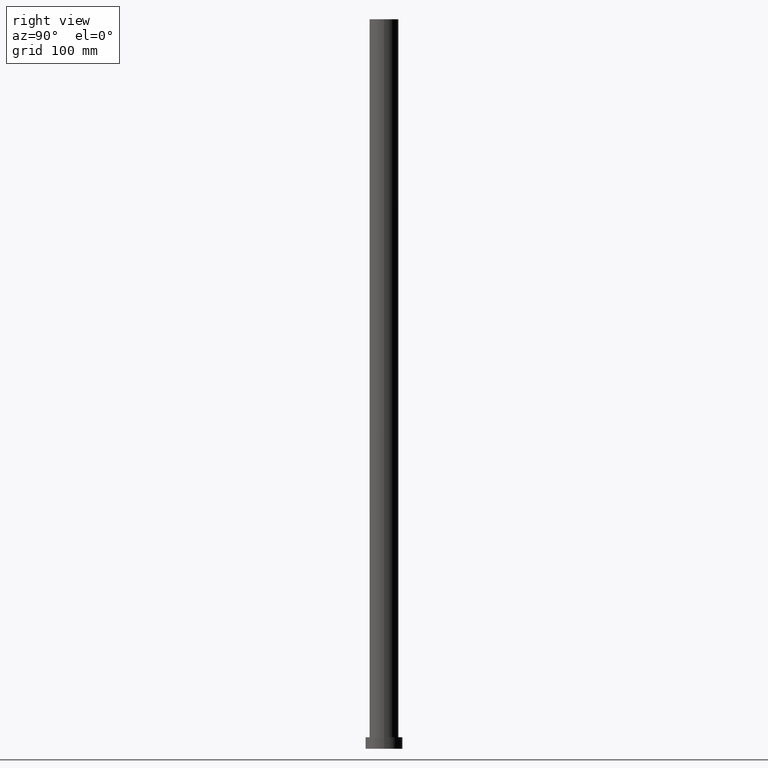
[diagram: clean part render]
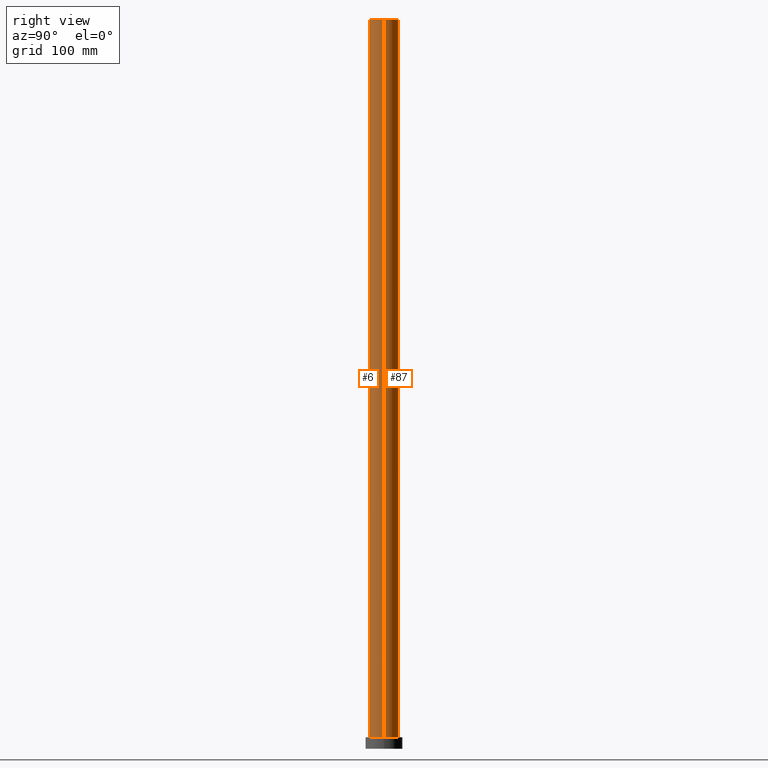
[diagram: same view with one multi-face feature highlighted, each face labeled with its STEP entity id]
A machine part, right view. The highlighted faces form ONE feature: a constant-radius fillet chain: 2 tangent blend faces with common blend radius 12.5 mm. The faces share edges in the B-rep.
Their STEP definitions:
[1] entity #6 (Cylinder):
#1 = EDGE_LOOP ( 'NONE', ( #241, #160, #198, #139 ) ) ;
#3 = CARTESIAN_POINT ( 'NONE',  ( -12.50000000000000000, 0.000000000000000000, 10.00000000000000000 ) ) ;
#6 = ADVANCED_FACE ( 'NONE', ( #131 ), #169, .T. ) ;
#12 = DIRECTION ( 'NONE',  ( -1.000000000000000000, 0.000000000000000000, 0.000000000000000000 ) ) ;
#19 = DIRECTION ( 'NONE',  ( 1.000000000000000000, 0.000000000000000000, 0.000000000000000000 ) ) ;
#23 = VERTEX_POINT ( 'NONE', #117 ) ;
#27 = EDGE_CURVE ( 'NONE', #174, #170, #157, .T. ) ;
#28 = AXIS2_PLACEMENT_3D ( 'NONE', #132, #38, #116 ) ;
#29 = CARTESIAN_POINT ( 'NONE',  ( 12.50000000000000000, 1.530808498934191521E-15, 630.0000000000000000 ) ) ;
#31 = EDGE_CURVE ( 'NONE', #170, #23, #98, .T. ) ;
#38 = DIRECTION ( 'NONE',  ( 0.000000000000000000, 0.000000000000000000, 1.000000000000000000 ) ) ;
#58 = VECTOR ( 'NONE', #156, 1000.000000000000000 ) ;
#60 = CARTESIAN_POINT ( 'NONE',  ( 0.000000000000000000, 0.000000000000000000, 630.0000000000000000 ) ) ;
#70 = AXIS2_PLACEMENT_3D ( 'NONE', #192, #114, #19 ) ;
#72 = DIRECTION ( 'NONE',  ( -0.000000000000000000, -0.000000000000000000, -1.000000000000000000 ) ) ;
#83 = LINE ( 'NONE', #137, #58 ) ;
#84 = VECTOR ( 'NONE', #238, 1000.000000000000000 ) ;
#97 = VERTEX_POINT ( 'NONE', #3 ) ;
#98 = LINE ( 'NONE', #190, #84 ) ;
#107 = CARTESIAN_POINT ( 'NONE',  ( -12.50000000000000000, 0.000000000000000000, 630.0000000000000000 ) ) ;
#114 = DIRECTION ( 'NONE',  ( 0.000000000000000000, 0.000000000000000000, 1.000000000000000000 ) ) ;
#116 = DIRECTION ( 'NONE',  ( 1.000000000000000000, 0.000000000000000000, 0.000000000000000000 ) ) ;
#117 = CARTESIAN_POINT ( 'NONE',  ( 12.50000000000000000, 1.530808498934191521E-15, 10.00000000000000000 ) ) ;
#131 = FACE_OUTER_BOUND ( 'NONE', #1, .T. ) ;
#132 = CARTESIAN_POINT ( 'NONE',  ( 0.000000000000000000, 0.000000000000000000, 10.00000000000000000 ) ) ;
#137 = CARTESIAN_POINT ( 'NONE',  ( -12.50000000000000000, 0.000000000000000000, 630.0000000000000000 ) ) ;
#139 = ORIENTED_EDGE ( 'NONE', *, *, #220, .T. ) ;
#141 = AXIS2_PLACEMENT_3D ( 'NONE', #60, #72, #12 ) ;
#142 = EDGE_CURVE ( 'NONE', #174, #97, #83, .T. ) ;
#156 = DIRECTION ( 'NONE',  ( -0.000000000000000000, -0.000000000000000000, -1.000000000000000000 ) ) ;
#157 = CIRCLE ( 'NONE', #70, 12.50000000000000000 ) ;
#160 = ORIENTED_EDGE ( 'NONE', *, *, #27, .F. ) ;
#169 = CYLINDRICAL_SURFACE ( 'NONE', #141, 12.50000000000000000 ) ;
#170 = VERTEX_POINT ( 'NONE', #29 ) ;
#174 = VERTEX_POINT ( 'NONE', #107 ) ;
#190 = CARTESIAN_POINT ( 'NONE',  ( 12.50000000000000000, 1.530808498934191521E-15, 630.0000000000000000 ) ) ;
#192 = CARTESIAN_POINT ( 'NONE',  ( 0.000000000000000000, 0.000000000000000000, 630.0000000000000000 ) ) ;
#198 = ORIENTED_EDGE ( 'NONE', *, *, #142, .T. ) ;
#220 = EDGE_CURVE ( 'NONE', #97, #23, #248, .T. ) ;
#238 = DIRECTION ( 'NONE',  ( -0.000000000000000000, -0.000000000000000000, -1.000000000000000000 ) ) ;
#241 = ORIENTED_EDGE ( 'NONE', *, *, #31, .F. ) ;
#248 = CIRCLE ( 'NONE', #28, 12.50000000000000000 ) ;
[2] entity #87 (Cylinder):
#3 = CARTESIAN_POINT ( 'NONE',  ( -12.50000000000000000, 0.000000000000000000, 10.00000000000000000 ) ) ;
#16 = EDGE_CURVE ( 'NONE', #23, #97, #172, .T. ) ;
#18 = CARTESIAN_POINT ( 'NONE',  ( 0.000000000000000000, 0.000000000000000000, 10.00000000000000000 ) ) ;
#23 = VERTEX_POINT ( 'NONE', #117 ) ;
#25 = AXIS2_PLACEMENT_3D ( 'NONE', #18, #232, #112 ) ;
#26 = DIRECTION ( 'NONE',  ( -0.000000000000000000, -0.000000000000000000, -1.000000000000000000 ) ) ;
#29 = CARTESIAN_POINT ( 'NONE',  ( 12.50000000000000000, 1.530808498934191521E-15, 630.0000000000000000 ) ) ;
#31 = EDGE_CURVE ( 'NONE', #170, #23, #98, .T. ) ;
#36 = DIRECTION ( 'NONE',  ( 1.000000000000000000, 0.000000000000000000, 0.000000000000000000 ) ) ;
#39 = ORIENTED_EDGE ( 'NONE', *, *, #142, .F. ) ;
#58 = VECTOR ( 'NONE', #156, 1000.000000000000000 ) ;
#81 = DIRECTION ( 'NONE',  ( -1.000000000000000000, 0.000000000000000000, 0.000000000000000000 ) ) ;
#83 = LINE ( 'NONE', #137, #58 ) ;
#84 = VECTOR ( 'NONE', #238, 1000.000000000000000 ) ;
#85 = CIRCLE ( 'NONE', #149, 12.50000000000000000 ) ;
#87 = ADVANCED_FACE ( 'NONE', ( #158 ), #221, .T. ) ;
#91 = DIRECTION ( 'NONE',  ( 0.000000000000000000, 0.000000000000000000, 1.000000000000000000 ) ) ;
#97 = VERTEX_POINT ( 'NONE', #3 ) ;
#98 = LINE ( 'NONE', #190, #84 ) ;
#104 = ORIENTED_EDGE ( 'NONE', *, *, #31, .T. ) ;
#107 = CARTESIAN_POINT ( 'NONE',  ( -12.50000000000000000, 0.000000000000000000, 630.0000000000000000 ) ) ;
#112 = DIRECTION ( 'NONE',  ( 1.000000000000000000, 0.000000000000000000, 0.000000000000000000 ) ) ;
#117 = CARTESIAN_POINT ( 'NONE',  ( 12.50000000000000000, 1.530808498934191521E-15, 10.00000000000000000 ) ) ;
#120 = ORIENTED_EDGE ( 'NONE', *, *, #16, .T. ) ;
#137 = CARTESIAN_POINT ( 'NONE',  ( -12.50000000000000000, 0.000000000000000000, 630.0000000000000000 ) ) ;
#138 = AXIS2_PLACEMENT_3D ( 'NONE', #201, #26, #81 ) ;
#142 = EDGE_CURVE ( 'NONE', #174, #97, #83, .T. ) ;
#149 = AXIS2_PLACEMENT_3D ( 'NONE', #154, #91, #36 ) ;
#154 = CARTESIAN_POINT ( 'NONE',  ( 0.000000000000000000, 0.000000000000000000, 630.0000000000000000 ) ) ;
#155 = EDGE_LOOP ( 'NONE', ( #216, #104, #120, #39 ) ) ;
#156 = DIRECTION ( 'NONE',  ( -0.000000000000000000, -0.000000000000000000, -1.000000000000000000 ) ) ;
#158 = FACE_OUTER_BOUND ( 'NONE', #155, .T. ) ;
#170 = VERTEX_POINT ( 'NONE', #29 ) ;
#172 = CIRCLE ( 'NONE', #25, 12.50000000000000000 ) ;
#174 = VERTEX_POINT ( 'NONE', #107 ) ;
#190 = CARTESIAN_POINT ( 'NONE',  ( 12.50000000000000000, 1.530808498934191521E-15, 630.0000000000000000 ) ) ;
#197 = EDGE_CURVE ( 'NONE', #170, #174, #85, .T. ) ;
#201 = CARTESIAN_POINT ( 'NONE',  ( 0.000000000000000000, 0.000000000000000000, 630.0000000000000000 ) ) ;
#216 = ORIENTED_EDGE ( 'NONE', *, *, #197, .F. ) ;
#221 = CYLINDRICAL_SURFACE ( 'NONE', #138, 12.50000000000000000 ) ;
#232 = DIRECTION ( 'NONE',  ( 0.000000000000000000, 0.000000000000000000, 1.000000000000000000 ) ) ;
#238 = DIRECTION ( 'NONE',  ( -0.000000000000000000, -0.000000000000000000, -1.000000000000000000 ) ) ;